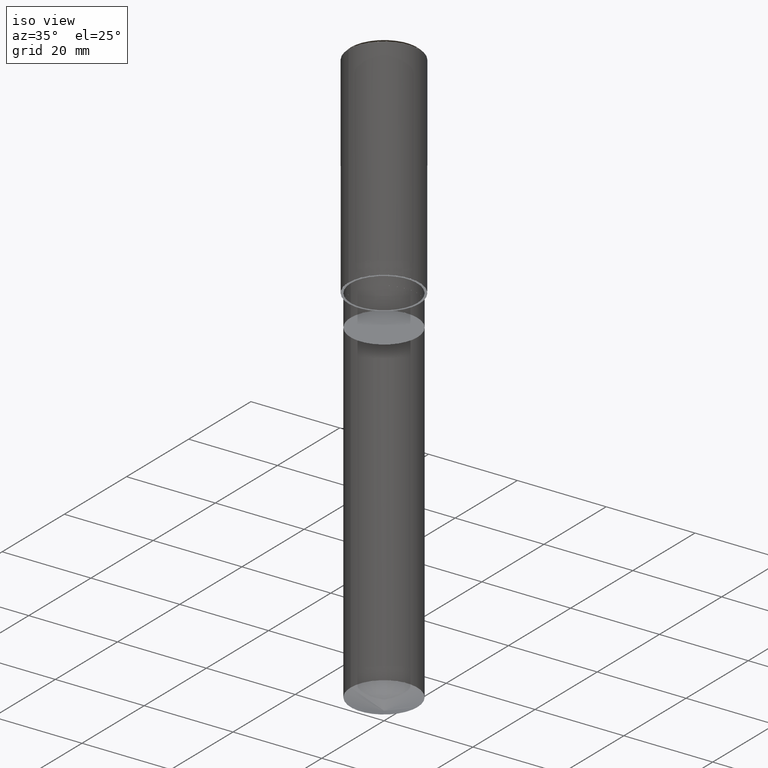
[diagram: clean part render]
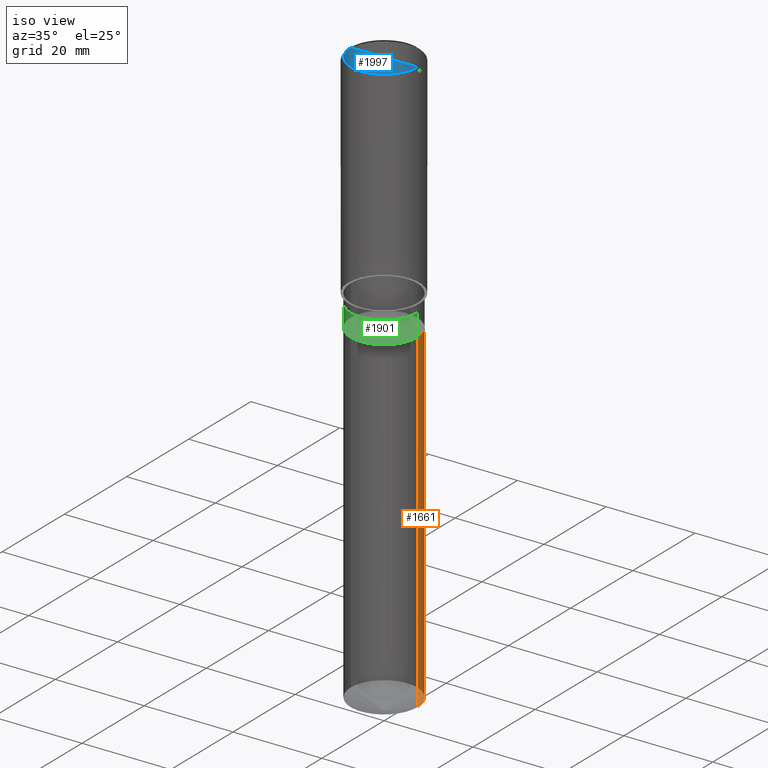
[diagram: same view with three faces highlighted in distinct colors, each labeled with its STEP entity id]
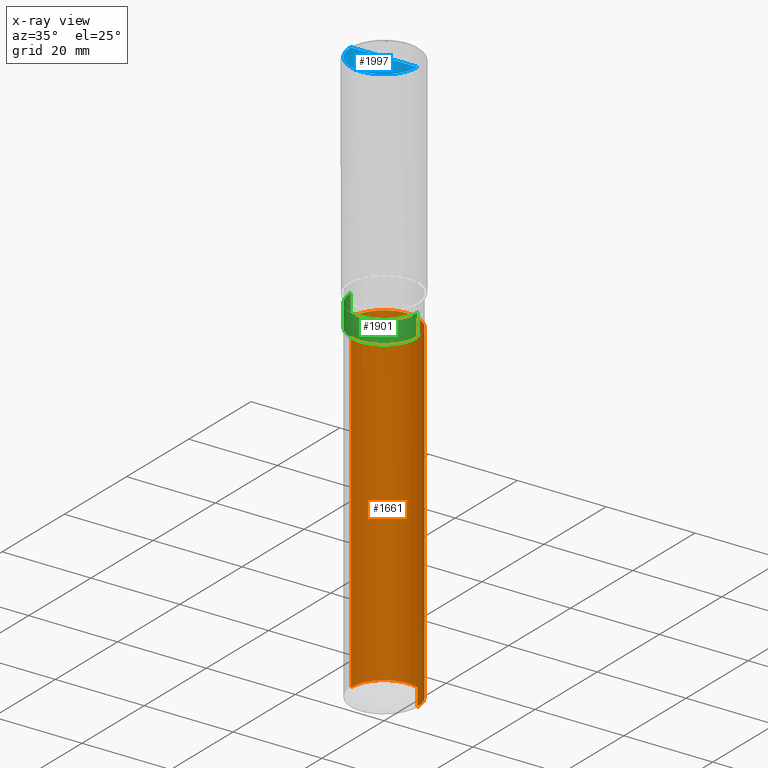
[diagram: x-ray of the same camera — body ghosted, the three highlighted faces saturated]
A machine part, iso view with three faces highlighted in distinct colors.
The next image is the same camera in x-ray (body ghosted, the three faces saturated) — at least one of them is partly hidden behind the body in this view.
Their STEP definitions:

[orange] entity #1661 — the highlighted face is a freeform B-spline surface patch.
#1563=CARTESIAN_POINT('',(7.5,0.0,-82.270223243003));
#1564=CARTESIAN_POINT('',(7.5,7.5,-82.270223243003));
#1565=CARTESIAN_POINT('',(0.0,7.5,-82.270223243003));
#1566=CARTESIAN_POINT('',(-7.5,7.5,-82.270223243003));
#1567=CARTESIAN_POINT('',(-7.5,0.0,-82.270223243003));
#1568=CARTESIAN_POINT('',(7.5,0.0,-7.0));
#1569=CARTESIAN_POINT('',(7.5,7.5,-7.0));
#1570=CARTESIAN_POINT('',(0.0,7.5,-7.0));
#1571=CARTESIAN_POINT('',(-7.5,7.5,-7.0));
#1572=CARTESIAN_POINT('',(-7.5,0.0,-7.0));
#1642=(
BOUNDED_SURFACE()
B_SPLINE_SURFACE(1,2,(
(#1563,#1564,#1565,#1566,#1567),
(#1568,#1569,#1570,#1571,#1572)
), .UNSPECIFIED.,.F.,.F.,.F.)
B_SPLINE_SURFACE_WITH_KNOTS((2,2),(3,2,3),(
0.0,1.0),(
0.0,0.5,1.0), .UNSPECIFIED.)
GEOMETRIC_REPRESENTATION_ITEM()
RATIONAL_B_SPLINE_SURFACE(((1.0,0.707106781187,1.0,0.707106781187,1.0),
(1.0,0.707106781187,1.0,0.707106781187,1.0)
))
REPRESENTATION_ITEM('')
SURFACE()
);
#1643=(
BOUNDED_CURVE()
B_SPLINE_CURVE(2,(#1567,#1566,#1565,#1564,#1563),.UNSPECIFIED.,.F.,.F.)
B_SPLINE_CURVE_WITH_KNOTS((3,2,3),
(0.0,0.5,1.0),.UNSPECIFIED.)
CURVE()
GEOMETRIC_REPRESENTATION_ITEM()
RATIONAL_B_SPLINE_CURVE((1.0,0.707106781187,1.0,0.707106781187,1.0))
REPRESENTATION_ITEM('')
);
#1644=(
BOUNDED_CURVE()
B_SPLINE_CURVE(1,(#1563,#1568),.UNSPECIFIED.,.F.,.F.)
B_SPLINE_CURVE_WITH_KNOTS((2,2),
(0.0,1.0),.UNSPECIFIED.)
CURVE()
GEOMETRIC_REPRESENTATION_ITEM()
RATIONAL_B_SPLINE_CURVE((1.0,1.0))
REPRESENTATION_ITEM('')
);
#1645=(
BOUNDED_CURVE()
B_SPLINE_CURVE(2,(#1568,#1569,#1570,#1571,#1572),.UNSPECIFIED.,.F.,.F.)
B_SPLINE_CURVE_WITH_KNOTS((3,2,3),
(0.0,0.5,1.0),.UNSPECIFIED.)
CURVE()
GEOMETRIC_REPRESENTATION_ITEM()
RATIONAL_B_SPLINE_CURVE((1.0,0.707106781187,1.0,0.707106781187,1.0))
REPRESENTATION_ITEM('')
);
#1646=(
BOUNDED_CURVE()
B_SPLINE_CURVE(1,(#1572,#1567),.UNSPECIFIED.,.F.,.F.)
B_SPLINE_CURVE_WITH_KNOTS((2,2),
(0.0,1.0),.UNSPECIFIED.)
CURVE()
GEOMETRIC_REPRESENTATION_ITEM()
RATIONAL_B_SPLINE_CURVE((1.0,1.0))
REPRESENTATION_ITEM('')
);
#1647=VERTEX_POINT('',#1563);
#1648=VERTEX_POINT('',#1567);
#1649=VERTEX_POINT('',#1568);
#1650=VERTEX_POINT('',#1572);
#1651=EDGE_CURVE('',#1648,#1647,#1643,.T.);
#1652=EDGE_CURVE('',#1647,#1649,#1644,.T.);
#1653=EDGE_CURVE('',#1649,#1650,#1645,.T.);
#1654=EDGE_CURVE('',#1650,#1648,#1646,.T.);
#1655=ORIENTED_EDGE('',*,*,#1651,.T.);
#1656=ORIENTED_EDGE('',*,*,#1652,.T.);
#1657=ORIENTED_EDGE('',*,*,#1653,.T.);
#1658=ORIENTED_EDGE('',*,*,#1654,.T.);
#1659=EDGE_LOOP('',(#1655,#1656,#1657,#1658));
#1660=FACE_OUTER_BOUND('',#1659,.T.);
#1661=ADVANCED_FACE('',(#1660),#1642,.T.);

[blue] entity #1997 — the highlighted face is a freeform B-spline surface patch.
#1600=CARTESIAN_POINT('',(7.5,0.0,48.0));
#1604=CARTESIAN_POINT('',(-7.5,0.0,48.0));
#1605=CARTESIAN_POINT('',(0.0,0.0,48.0));
#1618=CARTESIAN_POINT('',(-7.5,-7.5,48.0));
#1619=CARTESIAN_POINT('',(0.0,-7.5,48.0));
#1620=CARTESIAN_POINT('',(7.5,-7.5,48.0));
#1982=(
BOUNDED_SURFACE()
B_SPLINE_SURFACE(1,2,(
(#1604,#1618,#1619,#1620,#1600),
(#1605,#1605,#1605,#1605,#1605)
), .UNSPECIFIED.,.F.,.F.,.F.)
B_SPLINE_SURFACE_WITH_KNOTS((2,2),(3,2,3),(
0.0,1.0),(
0.0,0.5,1.0), .UNSPECIFIED.)
GEOMETRIC_REPRESENTATION_ITEM()
RATIONAL_B_SPLINE_SURFACE(((1.0,0.707106781187,1.0,0.707106781187,1.0),
(1.0,0.707106781187,1.0,0.707106781187,1.0)
))
REPRESENTATION_ITEM('')
SURFACE()
);
#1983=(
BOUNDED_CURVE()
B_SPLINE_CURVE(2,(#1600,#1620,#1619,#1618,#1604),.UNSPECIFIED.,.F.,.F.)
B_SPLINE_CURVE_WITH_KNOTS((3,2,3),
(0.0,0.5,1.0),.UNSPECIFIED.)
CURVE()
GEOMETRIC_REPRESENTATION_ITEM()
RATIONAL_B_SPLINE_CURVE((1.0,0.707106781187,1.0,0.707106781187,1.0))
REPRESENTATION_ITEM('')
);
#1984=(
BOUNDED_CURVE()
B_SPLINE_CURVE(1,(#1604,#1605),.UNSPECIFIED.,.F.,.F.)
B_SPLINE_CURVE_WITH_KNOTS((2,2),
(0.0,1.0),.UNSPECIFIED.)
CURVE()
GEOMETRIC_REPRESENTATION_ITEM()
RATIONAL_B_SPLINE_CURVE((1.0,1.0))
REPRESENTATION_ITEM('')
);
#1985=(
BOUNDED_CURVE()
B_SPLINE_CURVE(1,(#1605,#1600),.UNSPECIFIED.,.F.,.F.)
B_SPLINE_CURVE_WITH_KNOTS((2,2),
(0.0,1.0),.UNSPECIFIED.)
CURVE()
GEOMETRIC_REPRESENTATION_ITEM()
RATIONAL_B_SPLINE_CURVE((1.0,1.0))
REPRESENTATION_ITEM('')
);
#1986=VERTEX_POINT('',#1600);
#1987=VERTEX_POINT('',#1604);
#1988=VERTEX_POINT('',#1605);
#1989=EDGE_CURVE('',#1986,#1987,#1983,.T.);
#1990=EDGE_CURVE('',#1987,#1988,#1984,.T.);
#1991=EDGE_CURVE('',#1988,#1986,#1985,.T.);
#1992=ORIENTED_EDGE('',*,*,#1989,.T.);
#1993=ORIENTED_EDGE('',*,*,#1990,.T.);
#1994=ORIENTED_EDGE('',*,*,#1991,.T.);
#1995=EDGE_LOOP('',(#1992,#1993,#1994));
#1996=FACE_OUTER_BOUND('',#1995,.T.);
#1997=ADVANCED_FACE('',(#1996),#1982,.T.);

[green] entity #1901 — the highlighted face is a freeform B-spline surface patch.
#1568=CARTESIAN_POINT('',(7.5,0.0,-7.0));
#1572=CARTESIAN_POINT('',(-7.5,0.0,-7.0));
#1577=CARTESIAN_POINT('',(-7.5,-7.5,-7.0));
#1578=CARTESIAN_POINT('',(0.0,-7.5,-7.0));
#1579=CARTESIAN_POINT('',(7.5,-7.5,-7.0));
#1580=CARTESIAN_POINT('',(7.5,0.0,-2.0));
#1584=CARTESIAN_POINT('',(-7.5,0.0,-2.0));
#1606=CARTESIAN_POINT('',(-7.5,-7.5,-2.0));
#1607=CARTESIAN_POINT('',(0.0,-7.5,-2.0));
#1608=CARTESIAN_POINT('',(7.5,-7.5,-2.0));
#1882=(
BOUNDED_SURFACE()
B_SPLINE_SURFACE(1,2,(
(#1572,#1577,#1578,#1579,#1568),
(#1584,#1606,#1607,#1608,#1580)
), .UNSPECIFIED.,.F.,.F.,.F.)
B_SPLINE_SURFACE_WITH_KNOTS((2,2),(3,2,3),(
0.0,1.0),(
0.0,0.5,1.0), .UNSPECIFIED.)
GEOMETRIC_REPRESENTATION_ITEM()
RATIONAL_B_SPLINE_SURFACE(((1.0,0.707106781187,1.0,0.707106781187,1.0),
(1.0,0.707106781187,1.0,0.707106781187,1.0)
))
REPRESENTATION_ITEM('')
SURFACE()
);
#1883=(
BOUNDED_CURVE()
B_SPLINE_CURVE(2,(#1568,#1579,#1578,#1577,#1572),.UNSPECIFIED.,.F.,.F.)
B_SPLINE_CURVE_WITH_KNOTS((3,2,3),
(0.0,0.5,1.0),.UNSPECIFIED.)
CURVE()
GEOMETRIC_REPRESENTATION_ITEM()
RATIONAL_B_SPLINE_CURVE((1.0,0.707106781187,1.0,0.707106781187,1.0))
REPRESENTATION_ITEM('')
);
#1884=(
BOUNDED_CURVE()
B_SPLINE_CURVE(1,(#1572,#1584),.UNSPECIFIED.,.F.,.F.)
B_SPLINE_CURVE_WITH_KNOTS((2,2),
(0.0,1.0),.UNSPECIFIED.)
CURVE()
GEOMETRIC_REPRESENTATION_ITEM()
RATIONAL_B_SPLINE_CURVE((1.0,1.0))
REPRESENTATION_ITEM('')
);
#1885=(
BOUNDED_CURVE()
B_SPLINE_CURVE(2,(#1584,#1606,#1607,#1608,#1580),.UNSPECIFIED.,.F.,.F.)
B_SPLINE_CURVE_WITH_KNOTS((3,2,3),
(0.0,0.5,1.0),.UNSPECIFIED.)
CURVE()
GEOMETRIC_REPRESENTATION_ITEM()
RATIONAL_B_SPLINE_CURVE((1.0,0.707106781187,1.0,0.707106781187,1.0))
REPRESENTATION_ITEM('')
);
#1886=(
BOUNDED_CURVE()
B_SPLINE_CURVE(1,(#1580,#1568),.UNSPECIFIED.,.F.,.F.)
B_SPLINE_CURVE_WITH_KNOTS((2,2),
(0.0,1.0),.UNSPECIFIED.)
CURVE()
GEOMETRIC_REPRESENTATION_ITEM()
RATIONAL_B_SPLINE_CURVE((1.0,1.0))
REPRESENTATION_ITEM('')
);
#1887=VERTEX_POINT('',#1568);
#1888=VERTEX_POINT('',#1572);
#1889=VERTEX_POINT('',#1580);
#1890=VERTEX_POINT('',#1584);
#1891=EDGE_CURVE('',#1887,#1888,#1883,.T.);
#1892=EDGE_CURVE('',#1888,#1890,#1884,.T.);
#1893=EDGE_CURVE('',#1890,#1889,#1885,.T.);
#1894=EDGE_CURVE('',#1889,#1887,#1886,.T.);
#1895=ORIENTED_EDGE('',*,*,#1891,.T.);
#1896=ORIENTED_EDGE('',*,*,#1892,.T.);
#1897=ORIENTED_EDGE('',*,*,#1893,.T.);
#1898=ORIENTED_EDGE('',*,*,#1894,.T.);
#1899=EDGE_LOOP('',(#1895,#1896,#1897,#1898));
#1900=FACE_OUTER_BOUND('',#1899,.T.);
#1901=ADVANCED_FACE('',(#1900),#1882,.T.);